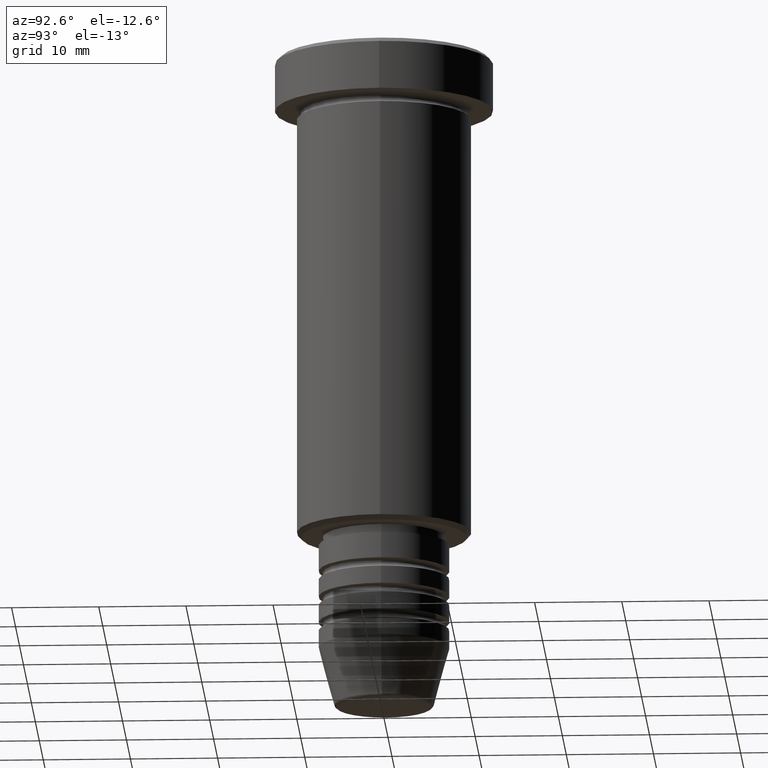
[diagram: clean part render]
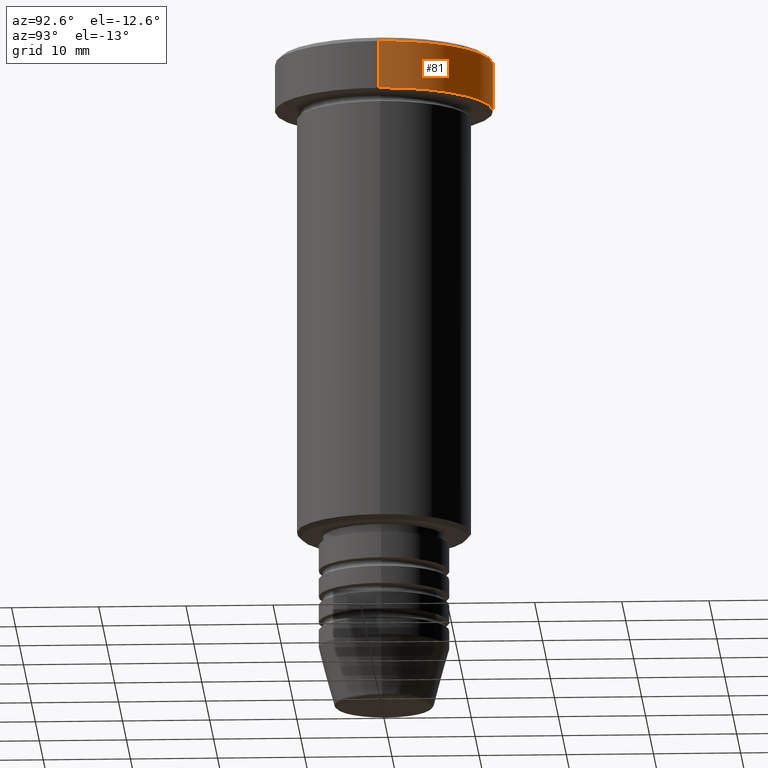
[diagram: same view with one face highlighted and labeled with its STEP entity id]
A machine part, auxiliary view. The second image highlights one B-rep face of the part: STEP entity #81.
In plain terms, the highlighted cylindrical surface (partial cylindrical patch) has radius 12.5 mm, axis along (-0, -0, 1).
Its self-contained STEP definition (entity closure, byte-faithful):
#81 = ADVANCED_FACE ( 'NONE', ( #397 ), #758, .T. ) ;
#118 = DIRECTION ( 'NONE',  ( 0.000000000000000000, 0.000000000000000000, -1.000000000000000000 ) ) ;
#124 = VECTOR ( 'NONE', #762, 1000.000000000000000 ) ;
#125 = AXIS2_PLACEMENT_3D ( 'NONE', #989, #985, #549 ) ;
#270 = LINE ( 'NONE', #437, #425 ) ;
#327 = ORIENTED_EDGE ( 'NONE', *, *, #1139, .T. ) ;
#344 = DIRECTION ( 'NONE',  ( -0.000000000000000000, -0.000000000000000000, 1.000000000000000000 ) ) ;
#397 = FACE_OUTER_BOUND ( 'NONE', #632, .T. ) ;
#423 = CARTESIAN_POINT ( 'NONE',  ( 12.50000000000000000, 0.000000000000000000, -0.4999999999999987232 ) ) ;
#425 = VECTOR ( 'NONE', #344, 1000.000000000000000 ) ;
#437 = CARTESIAN_POINT ( 'NONE',  ( -12.50000000000000000, 1.530808498934191521E-15, 0.000000000000000000 ) ) ;
#446 = VERTEX_POINT ( 'NONE', #833 ) ;
#477 = ORIENTED_EDGE ( 'NONE', *, *, #1125, .T. ) ;
#488 = DIRECTION ( 'NONE',  ( 1.000000000000000000, 0.000000000000000000, 0.000000000000000000 ) ) ;
#535 = VERTEX_POINT ( 'NONE', #559 ) ;
#549 = DIRECTION ( 'NONE',  ( 1.000000000000000000, 0.000000000000000000, 0.000000000000000000 ) ) ;
#555 = AXIS2_PLACEMENT_3D ( 'NONE', #742, #1106, #845 ) ;
#559 = CARTESIAN_POINT ( 'NONE',  ( 12.50000000000000000, 0.000000000000000000, -5.999999999999996447 ) ) ;
#564 = LINE ( 'NONE', #576, #124 ) ;
#570 = CARTESIAN_POINT ( 'NONE',  ( -12.50000000000000000, 1.530808498934191521E-15, -0.4999999999999987232 ) ) ;
#576 = CARTESIAN_POINT ( 'NONE',  ( 12.50000000000000000, 0.000000000000000000, 0.000000000000000000 ) ) ;
#580 = CIRCLE ( 'NONE', #960, 12.50000000000000000 ) ;
#632 = EDGE_LOOP ( 'NONE', ( #477, #327, #932, #1068 ) ) ;
#635 = CIRCLE ( 'NONE', #125, 12.50000000000000000 ) ;
#742 = CARTESIAN_POINT ( 'NONE',  ( 0.000000000000000000, 0.000000000000000000, 0.000000000000000000 ) ) ;
#758 = CYLINDRICAL_SURFACE ( 'NONE', #555, 12.50000000000000000 ) ;
#762 = DIRECTION ( 'NONE',  ( -0.000000000000000000, -0.000000000000000000, 1.000000000000000000 ) ) ;
#833 = CARTESIAN_POINT ( 'NONE',  ( -12.50000000000000000, 1.530808498934191521E-15, -5.999999999999996447 ) ) ;
#845 = DIRECTION ( 'NONE',  ( 1.000000000000000000, 0.000000000000000000, 0.000000000000000000 ) ) ;
#847 = EDGE_CURVE ( 'NONE', #535, #1051, #564, .T. ) ;
#870 = VERTEX_POINT ( 'NONE', #570 ) ;
#874 = EDGE_CURVE ( 'NONE', #870, #1051, #580, .T. ) ;
#932 = ORIENTED_EDGE ( 'NONE', *, *, #874, .T. ) ;
#939 = CARTESIAN_POINT ( 'NONE',  ( 0.000000000000000000, 0.000000000000000000, -0.4999999999999987232 ) ) ;
#960 = AXIS2_PLACEMENT_3D ( 'NONE', #939, #118, #488 ) ;
#985 = DIRECTION ( 'NONE',  ( -0.000000000000000000, -0.000000000000000000, 1.000000000000000000 ) ) ;
#989 = CARTESIAN_POINT ( 'NONE',  ( 0.000000000000000000, 0.000000000000000000, -5.999999999999996447 ) ) ;
#1051 = VERTEX_POINT ( 'NONE', #423 ) ;
#1068 = ORIENTED_EDGE ( 'NONE', *, *, #847, .F. ) ;
#1106 = DIRECTION ( 'NONE',  ( -0.000000000000000000, -0.000000000000000000, 1.000000000000000000 ) ) ;
#1125 = EDGE_CURVE ( 'NONE', #535, #446, #635, .T. ) ;
#1139 = EDGE_CURVE ( 'NONE', #446, #870, #270, .T. ) ;